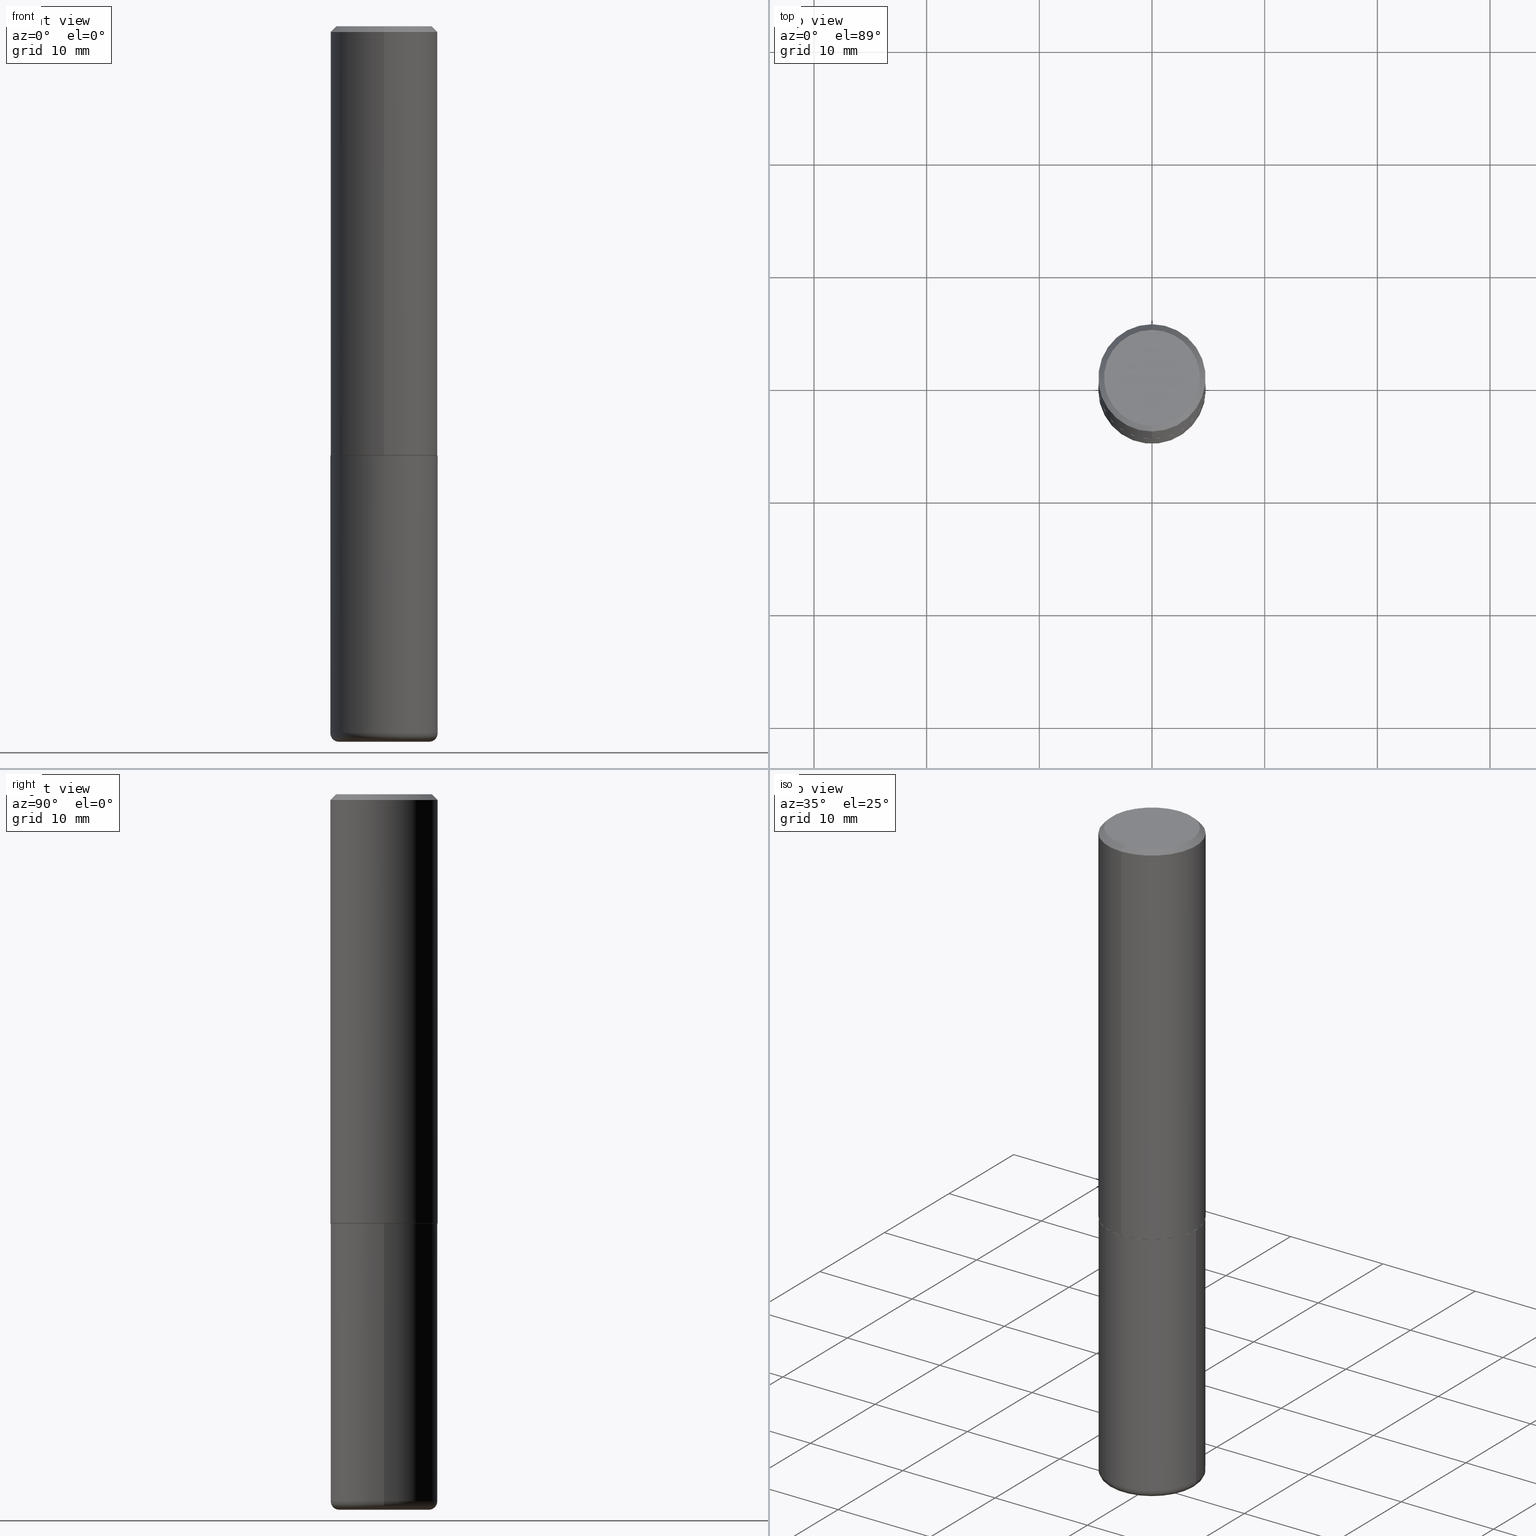
[diagram: canonical four-view strip — front | top / right | iso, engineering-drawing reading convention]
A machine part, canonical four-view strip (front | top / right | iso — engineering-drawing reading convention). The complete STEP part file that produces these views, byte-faithful:
ISO-10303-21;
HEADER;
FILE_DESCRIPTION (( 'STEP AP203' ),
    '1' );
FILE_NAME ('38250.STEP',
    '2024-03-02T19:38:32',
    ( '' ),
    ( '' ),
    'SwSTEP 2.0',
    'SolidWorks 2023',
    '' );
FILE_SCHEMA (( 'CONFIG_CONTROL_DESIGN' ));
ENDSEC;

DATA;
#1 = EDGE_LOOP ( 'NONE', ( #349, #96 ) ) ;
#2 = EDGE_CURVE ( 'NONE', #31, #197, #258, .T. ) ;
#3 = ORIENTED_EDGE ( 'NONE', *, *, #144, .F. ) ;
#4 = CARTESIAN_POINT ( 'NONE',  ( 3.666321494475970828E-29, -5.232923199104616895E-15, -1.499000000000000110 ) ) ;
#5 = CIRCLE ( 'NONE', #249, 0.1864999999999999714 ) ;
#6 = CIRCLE ( 'NONE', #402, 0.03000000000000025910 ) ;
#7 = AXIS2_PLACEMENT_3D ( 'NONE', #10, #13, #153 ) ;
#8 = DIRECTION ( 'NONE',  ( 1.000000000000000000, -6.982962677686267499E-15, 0.000000000000000000 ) ) ;
#9 = CARTESIAN_POINT ( 'NONE',  ( 3.668767339368883594E-29, -5.236414141865861409E-15, -1.500000000000000444 ) ) ;
#10 = CARTESIAN_POINT ( 'NONE',  ( 3.668203209277704895E-29, -5.237222008264718177E-15, -1.500000000000000222 ) ) ;
#11 = CARTESIAN_POINT ( 'NONE',  ( 6.113672015462842613E-29, -8.728703347107866520E-15, -2.500000000000000444 ) ) ;
#12 = CARTESIAN_POINT ( 'NONE',  ( 3.668767339368883594E-29, -5.236414141865861409E-15, -1.500000000000000444 ) ) ;
#13 = DIRECTION ( 'NONE',  ( 2.438088387897960049E-29, -3.491481338843145188E-15, -1.000000000000000000 ) ) ;
#14 = PERSON_AND_ORGANIZATION ( #245, #317 ) ;
#15 = PERSON_AND_ORGANIZATION ( #245, #317 ) ;
#16 = UNCERTAINTY_MEASURE_WITH_UNIT (LENGTH_MEASURE( 1.000000000000000082E-05 ), #370, 'distance_accuracy_value', 'NONE');
#17 = CARTESIAN_POINT ( 'NONE',  ( -1.302322539388451720E-15, -0.1865000000000051894, -1.499999999999999778 ) ) ;
#18 = CIRCLE ( 'NONE', #418, 0.1575000000000000289 ) ;
#19 = DIRECTION ( 'NONE',  ( 1.000000000000000000, -6.982962677686267499E-15, 4.883557194083113462E-29 ) ) ;
#20 = CONICAL_SURFACE ( 'NONE', #97, 0.1874999999999999722, 0.7853981633974469467 ) ;
#21 = DIRECTION ( 'NONE',  ( -4.937700262164211199E-15, -0.7071067811864968355, 0.7071067811865981989 ) ) ;
#22 = PERSON_AND_ORGANIZATION_ROLE ( 'design_owner' ) ;
#23 = DIRECTION ( 'NONE',  ( 1.000000000000000000, -6.982962677686267499E-15, 0.000000000000000000 ) ) ;
#24 = APPROVAL_STATUS ( 'not_yet_approved' ) ;
#25 = CC_DESIGN_PERSON_AND_ORGANIZATION_ASSIGNMENT ( #14, #53, ( #360 ) ) ;
#26 = VERTEX_POINT ( 'NONE', #117 ) ;
#27 = AXIS2_PLACEMENT_3D ( 'NONE', #30, #206, #151 ) ;
#28 = DIRECTION ( 'NONE',  ( -2.445844892912588876E-29, 3.490942761243906817E-15, 1.000000000000000000 ) ) ;
#29 = VERTEX_POINT ( 'NONE', #235 ) ;
#30 = CARTESIAN_POINT ( 'NONE',  ( 3.666321494475970828E-29, -5.232923199104616895E-15, -1.499000000000000110 ) ) ;
#31 = VERTEX_POINT ( 'NONE', #353 ) ;
#32 = ORIENTED_EDGE ( 'NONE', *, *, #84, .F. ) ;
#33 = DIRECTION ( 'NONE',  ( 7.105427357601001859E-15, 1.000000000000000000, -3.491481338843145583E-15 ) ) ;
#34 = DIRECTION ( 'NONE',  ( -6.982962677686266711E-15, -1.000000000000000000, 3.490942761243906423E-15 ) ) ;
#35 = VECTOR ( 'NONE', #391, 39.37007874015748143 ) ;
#36 = LOCAL_TIME ( 14, 38, 32.00000000000000000, #187 ) ;
#37 = CIRCLE ( 'NONE', #135, 0.1575000000000000289 ) ;
#38 =( LENGTH_UNIT ( ) NAMED_UNIT ( * ) SI_UNIT ( $, .METRE. ) );
#39 = EDGE_CURVE ( 'NONE', #129, #227, #412, .T. ) ;
#40 = CARTESIAN_POINT ( 'NONE',  ( 0.1875000000000001943, -9.933264409008746581E-15, -2.470000000000000195 ) ) ;
#41 = CARTESIAN_POINT ( 'NONE',  ( 3.668767339368883594E-29, -5.236414141865861409E-15, -1.500000000000000444 ) ) ;
#42 = LENGTH_MEASURE_WITH_UNIT ( LENGTH_MEASURE( 0.02539999999999999897 ), #38 );
#43 = DIRECTION ( 'NONE',  ( -6.982962677686265922E-15, -1.000000000000000000, 2.929595703661408850E-15 ) ) ;
#44 = LOCAL_TIME ( 14, 38, 32.00000000000000000, #126 ) ;
#45 = DATE_TIME_ROLE ( 'creation_date' ) ;
#46 = EDGE_CURVE ( 'NONE', #95, #69, #330, .T. ) ;
#47 = APPROVAL_ROLE ( '' ) ;
#48 = ADVANCED_FACE ( 'NONE', ( #175 ), #238, .F. ) ;
#49 = FACE_OUTER_BOUND ( 'NONE', #357, .T. ) ;
#50 = DIRECTION ( 'NONE',  ( 0.000000000000000000, 0.000000000000000000, 1.000000000000000000 ) ) ;
#51 = CARTESIAN_POINT ( 'NONE',  ( 6.040307951277287977E-29, -8.623958906942569995E-15, -2.470000000000000195 ) ) ;
#52 = DIRECTION ( 'NONE',  ( -2.445844892912589156E-29, 3.490942761243906423E-15, 1.000000000000000000 ) ) ;
#53 = PERSON_AND_ORGANIZATION_ROLE ( 'design_supplier' ) ;
#54 = AXIS2_PLACEMENT_3D ( 'NONE', #41, #246, #413 ) ;
#55 = LINE ( 'NONE', #199, #156 ) ;
#56 = EDGE_CURVE ( 'NONE', #142, #95, #185, .T. ) ;
#57 = PERSON_AND_ORGANIZATION ( #245, #317 ) ;
#58 = ORIENTED_EDGE ( 'NONE', *, *, #84, .T. ) ;
#59 = MANIFOLD_SOLID_BREP ( 'Body-Move/Copy2[1]', #371 ) ;
#60 = CC_DESIGN_DATE_AND_TIME_ASSIGNMENT ( #214, #45, ( #277 ) ) ;
#61 = ORIENTED_EDGE ( 'NONE', *, *, #2, .F. ) ;
#62 = EDGE_CURVE ( 'NONE', #70, #31, #404, .T. ) ;
#63 = CARTESIAN_POINT ( 'NONE',  ( 7.330148026253442751E-46, -1.046228534983812136E-31, -2.996979917857535013E-17 ) ) ;
#64 = AXIS2_PLACEMENT_3D ( 'NONE', #81, #77, #149 ) ;
#65 = CC_DESIGN_APPROVAL ( #72, ( #360 ) ) ;
#66 = ORIENTED_EDGE ( 'NONE', *, *, #116, .F. ) ;
#67 = EDGE_CURVE ( 'NONE', #165, #300, #6, .T. ) ;
#68 = AXIS2_PLACEMENT_3D ( 'NONE', #181, #177, #394 ) ;
#69 = VERTEX_POINT ( 'NONE', #338 ) ;
#70 = VERTEX_POINT ( 'NONE', #17 ) ;
#71 = AXIS2_PLACEMENT_3D ( 'NONE', #4, #104, #366 ) ;
#72 = APPROVAL ( #90, 'UNSPECIFIED' ) ;
#73 = DIRECTION ( 'NONE',  ( -2.445844892912588876E-29, 3.490942761243906817E-15, 1.000000000000000000 ) ) ;
#74 = DIRECTION ( 'NONE',  ( -2.445468806185136597E-29, 3.491481338843145583E-15, 1.000000000000000000 ) ) ;
#75 = FACE_OUTER_BOUND ( 'NONE', #314, .T. ) ;
#76 = FACE_OUTER_BOUND ( 'NONE', #380, .T. ) ;
#77 = DIRECTION ( 'NONE',  ( 2.438088387897960049E-29, -3.491481338843145188E-15, -1.000000000000000000 ) ) ;
#78 = EDGE_CURVE ( 'NONE', #95, #142, #99, .T. ) ;
#79 = AXIS2_PLACEMENT_3D ( 'NONE', #304, #368, #210 ) ;
#80 = APPROVAL_PERSON_ORGANIZATION ( #15, #72, #47 ) ;
#81 = CARTESIAN_POINT ( 'NONE',  ( 5.767437074231431519E-31, -1.740123666032775133E-14, -2.500000000000000000 ) ) ;
#82 = CYLINDRICAL_SURFACE ( 'NONE', #264, 0.1875000000000000555 ) ;
#83 = FACE_OUTER_BOUND ( 'NONE', #237, .T. ) ;
#84 = EDGE_CURVE ( 'NONE', #197, #69, #226, .T. ) ;
#85 = DIRECTION ( 'NONE',  ( 2.445844892912588876E-29, -3.490942761243906423E-15, -1.000000000000000000 ) ) ;
#86 = EDGE_CURVE ( 'NONE', #232, #197, #55, .T. ) ;
#87 = CALENDAR_DATE ( 2024, 2, 3 ) ;
#88 = LINE ( 'NONE', #269, #361 ) ;
#89 = CIRCLE ( 'NONE', #192, 0.1874999999999999722 ) ;
#90 = APPROVAL_STATUS ( 'not_yet_approved' ) ;
#91 = DESIGN_CONTEXT ( 'detailed design', #363, 'design' ) ;
#92 = DATE_TIME_ROLE ( 'classification_date' ) ;
#93 = DIRECTION ( 'NONE',  ( -2.445468806185136597E-29, 3.491481338843145583E-15, 1.000000000000000000 ) ) ;
#94 = CARTESIAN_POINT ( 'NONE',  ( 3.668203209277704895E-29, -5.237222008264718177E-15, -1.500000000000000222 ) ) ;
#95 = VERTEX_POINT ( 'NONE', #311 ) ;
#96 = ORIENTED_EDGE ( 'NONE', *, *, #346, .T. ) ;
#97 = AXIS2_PLACEMENT_3D ( 'NONE', #221, #341, #194 ) ;
#98 = ORIENTED_EDGE ( 'NONE', *, *, #144, .T. ) ;
#99 = CIRCLE ( 'NONE', #207, 0.1675000000000000100 ) ;
#100 = AXIS2_PLACEMENT_3D ( 'NONE', #150, #85, #212 ) ;
#101 = ORIENTED_EDGE ( 'NONE', *, *, #67, .F. ) ;
#102 = ORIENTED_EDGE ( 'NONE', *, *, #108, .F. ) ;
#103 = EDGE_CURVE ( 'NONE', #69, #136, #89, .T. ) ;
#104 = DIRECTION ( 'NONE',  ( -2.445844892912588876E-29, 3.490942761243906817E-15, 1.000000000000000000 ) ) ;
#105 = APPROVAL ( #337, 'UNSPECIFIED' ) ;
#106 = DIRECTION ( 'NONE',  ( 4.937700262164540942E-15, 0.7071067811865441310, -0.7071067811865509034 ) ) ;
#107 = DIRECTION ( 'NONE',  ( -2.445468806185136877E-29, 3.491481338843145188E-15, 1.000000000000000000 ) ) ;
#108 = EDGE_CURVE ( 'NONE', #136, #69, #299, .T. ) ;
#109 = DIMENSIONAL_EXPONENTS ( 1.000000000000000000, 0.000000000000000000, 0.000000000000000000, 0.000000000000000000, 0.000000000000000000, 0.000000000000000000, 0.000000000000000000 ) ;
#110 = DIRECTION ( 'NONE',  ( -2.445468806185136597E-29, 3.491481338843145583E-15, 1.000000000000000000 ) ) ;
#111 = DIRECTION ( 'NONE',  ( -2.445468806185136877E-29, 3.491481338843145188E-15, 1.000000000000000000 ) ) ;
#112 = CARTESIAN_POINT ( 'NONE',  ( 0.000000000000000000, 0.000000000000000000, 0.000000000000000000 ) ) ;
#113 = LOCAL_TIME ( 14, 38, 32.00000000000000000, #307 ) ;
#114 = CARTESIAN_POINT ( 'NONE',  ( 3.668767339368883594E-29, -5.236414141865861409E-15, -1.500000000000000444 ) ) ;
#115 = DIRECTION ( 'NONE',  ( -2.445468806185136597E-29, 3.491481338843145583E-15, 1.000000000000000000 ) ) ;
#116 = EDGE_CURVE ( 'NONE', #129, #165, #18, .T. ) ;
#117 = CARTESIAN_POINT ( 'NONE',  ( -0.1875000000000000278, -5.598322828053456632E-15, -1.500000000000000222 ) ) ;
#118 = FACE_OUTER_BOUND ( 'NONE', #397, .T. ) ;
#119 = FACE_OUTER_BOUND ( 'NONE', #294, .T. ) ;
#120 = CARTESIAN_POINT ( 'NONE',  ( 0.000000000000000000, 0.000000000000000000, 0.000000000000000000 ) ) ;
#121 = PERSON_AND_ORGANIZATION ( #245, #317 ) ;
#122 = DIRECTION ( 'NONE',  ( 1.000000000000000000, -6.982962677686266711E-15, 0.000000000000000000 ) ) ;
#123 = CARTESIAN_POINT ( 'NONE',  ( 4.891689785825187560E-31, -6.981885522487828820E-17, -0.02000000000000004205 ) ) ;
#124 = AXIS2_PLACEMENT_3D ( 'NONE', #123, #256, #252 ) ;
#125 = DATE_AND_TIME ( #279, #113 ) ;
#126 = COORDINATED_UNIVERSAL_TIME_OFFSET ( 5, 0, .BEHIND. ) ;
#127 = DIRECTION ( 'NONE',  ( 1.000000000000000000, -6.982962677686273021E-15, 0.000000000000000000 ) ) ;
#128 = VECTOR ( 'NONE', #106, 39.37007874015748143 ) ;
#129 = VERTEX_POINT ( 'NONE', #374 ) ;
#130 = DIRECTION ( 'NONE',  ( 1.000000000000000000, -6.982962677686266711E-15, 0.000000000000000000 ) ) ;
#131 = ORIENTED_EDGE ( 'NONE', *, *, #346, .F. ) ;
#132 = ORIENTED_EDGE ( 'NONE', *, *, #62, .T. ) ;
#133 = CIRCLE ( 'NONE', #281, 0.1875000000000000555 ) ;
#134 = ORIENTED_EDGE ( 'NONE', *, *, #86, .F. ) ;
#135 = AXIS2_PLACEMENT_3D ( 'NONE', #11, #268, #8 ) ;
#136 = VERTEX_POINT ( 'NONE', #336 ) ;
#137 = ADVANCED_FACE ( 'NONE', ( #49 ), #20, .T. ) ;
#138 = APPROVAL ( #24, 'UNSPECIFIED' ) ;
#139 = DIRECTION ( 'NONE',  ( -1.000000000000000000, 7.105427357600994759E-15, 0.000000000000000000 ) ) ;
#140 = DIRECTION ( 'NONE',  ( -6.982962677686265922E-15, -1.000000000000000000, 2.929595703661408850E-15 ) ) ;
#141 = CARTESIAN_POINT ( 'NONE',  ( -0.1875000000000001943, -7.291691277392382147E-15, -2.470000000000000195 ) ) ;
#142 = VERTEX_POINT ( 'NONE', #163 ) ;
#143 = VECTOR ( 'NONE', #52, 39.37007874015748143 ) ;
#144 = EDGE_CURVE ( 'NONE', #197, #31, #381, .T. ) ;
#145 = DIRECTION ( 'NONE',  ( 2.445844892912588876E-29, -3.490942761243906817E-15, -1.000000000000000000 ) ) ;
#146 = DIRECTION ( 'NONE',  ( -6.982962677686265922E-15, -1.000000000000000000, 2.929595703661408850E-15 ) ) ;
#147 = DIRECTION ( 'NONE',  ( 6.982962677686266711E-15, 1.000000000000000000, -3.483106191921935949E-15 ) ) ;
#148 = FACE_OUTER_BOUND ( 'NONE', #416, .T. ) ;
#149 = DIRECTION ( 'NONE',  ( -1.000000000000000000, 6.982962677686265922E-15, -4.876176775795935793E-29 ) ) ;
#150 = CARTESIAN_POINT ( 'NONE',  ( 1.169646248512449595E-15, 0.1675000000000000100, -5.997178120976420969E-16 ) ) ;
#151 = DIRECTION ( 'NONE',  ( -6.982962677686265922E-15, -1.000000000000000000, 2.913971193241877611E-15 ) ) ;
#152 = ADVANCED_FACE ( 'NONE', ( #303 ), #170, .T. ) ;
#153 = DIRECTION ( 'NONE',  ( -1.000000000000000000, 6.982962677686265922E-15, -4.876176775795935793E-29 ) ) ;
#154 = DATE_AND_TIME ( #285, #369 ) ;
#155 = PERSON_AND_ORGANIZATION ( #245, #317 ) ;
#156 = VECTOR ( 'NONE', #376, 39.37007874015748143 ) ;
#157 = DIRECTION ( 'NONE',  ( -2.445844892912588876E-29, 3.490942761243906817E-15, 1.000000000000000000 ) ) ;
#158 = ADVANCED_FACE ( 'NONE', ( #241 ), #208, .F. ) ;
#159 = CIRCLE ( 'NONE', #265, 0.1875000000000000278 ) ;
#160 = PERSON_AND_ORGANIZATION ( #245, #317 ) ;
#161 = DIRECTION ( 'NONE',  ( -6.982962677686266711E-15, -1.000000000000000000, 3.491481338843145583E-15 ) ) ;
#162 = ADVANCED_FACE ( 'NONE', ( #205 ), #273, .T. ) ;
#163 = CARTESIAN_POINT ( 'NONE',  ( -1.217738394604446442E-15, -0.1675000000000000100, 5.547631133297791179E-16 ) ) ;
#164 = APPROVAL_ROLE ( '' ) ;
#165 = VERTEX_POINT ( 'NONE', #327 ) ;
#166 = EDGE_CURVE ( 'NONE', #227, #300, #198, .T. ) ;
#167 = CARTESIAN_POINT ( 'NONE',  ( 6.113672015462842613E-29, -8.728703347107866520E-15, -2.500000000000000444 ) ) ;
#168 = TOROIDAL_SURFACE ( 'NONE', #79, 0.1575000000000000289, 0.03000000000000025910 ) ;
#169 = ORIENTED_EDGE ( 'NONE', *, *, #56, .T. ) ;
#170 = CYLINDRICAL_SURFACE ( 'NONE', #372, 0.1875000000000000555 ) ;
#171 = ORIENTED_EDGE ( 'NONE', *, *, #191, .F. ) ;
#172 = ORIENTED_EDGE ( 'NONE', *, *, #46, .F. ) ;
#173 = SHAPE_DEFINITION_REPRESENTATION ( #225, #261 ) ;
#174 = ORIENTED_EDGE ( 'NONE', *, *, #384, .F. ) ;
#175 = FACE_OUTER_BOUND ( 'NONE', #259, .T. ) ;
#176 = VECTOR ( 'NONE', #111, 39.37007874015748143 ) ;
#177 = DIRECTION ( 'NONE',  ( -2.445468806185136597E-29, 3.491481338843145583E-15, 1.000000000000000000 ) ) ;
#178 = AXIS2_PLACEMENT_3D ( 'NONE', #186, #33, #139 ) ;
#179 = CIRCLE ( 'NONE', #242, 0.1875000000000000278 ) ;
#180 = CALENDAR_DATE ( 2024, 2, 3 ) ;
#181 = CARTESIAN_POINT ( 'NONE',  ( 6.040307951277287977E-29, -8.623958906942569995E-15, -2.470000000000000195 ) ) ;
#182 = PLANE ( 'NONE',  #100 ) ;
#183 = FACE_OUTER_BOUND ( 'NONE', #196, .T. ) ;
#184 = APPROVAL_PERSON_ORGANIZATION ( #217, #105, #308 ) ;
#185 = CIRCLE ( 'NONE', #292, 0.1675000000000000100 ) ;
#186 = CARTESIAN_POINT ( 'NONE',  ( -0.1575000000000000289, -7.504854098120412392E-15, -2.470000000000000195 ) ) ;
#187 = COORDINATED_UNIVERSAL_TIME_OFFSET ( 5, 0, .BEHIND. ) ;
#188 = ORIENTED_EDGE ( 'NONE', *, *, #396, .T. ) ;
#189 = ADVANCED_FACE ( 'NONE', ( #148 ), #82, .T. ) ;
#190 = PERSON_AND_ORGANIZATION_ROLE ( 'classification_officer' ) ;
#191 = EDGE_CURVE ( 'NONE', #142, #136, #88, .T. ) ;
#192 = AXIS2_PLACEMENT_3D ( 'NONE', #345, #28, #406 ) ;
#193 = COORDINATED_UNIVERSAL_TIME_OFFSET ( 5, 0, .BEHIND. ) ;
#194 = DIRECTION ( 'NONE',  ( 6.982962677686266711E-15, 1.000000000000000000, -3.483106191921935949E-15 ) ) ;
#195 = APPLICATION_PROTOCOL_DEFINITION ( 'international standard', 'config_control_design', 1994, #363 ) ;
#196 = EDGE_LOOP ( 'NONE', ( #343, #293, #61, #389 ) ) ;
#197 = VERTEX_POINT ( 'NONE', #296 ) ;
#198 = CIRCLE ( 'NONE', #68, 0.1875000000000000555 ) ;
#199 = CARTESIAN_POINT ( 'NONE',  ( 1.325162202192623128E-15, 0.1864999999999947533, -1.500000000000000888 ) ) ;
#200 = CLOSED_SHELL ( 'NONE', ( #234, #162, #137, #364, #356, #375, #48, #315 ) ) ;
#201 = ORIENTED_EDGE ( 'NONE', *, *, #56, .F. ) ;
#202 = ORIENTED_EDGE ( 'NONE', *, *, #257, .F. ) ;
#203 = ORIENTED_EDGE ( 'NONE', *, *, #213, .F. ) ;
#204 = MANIFOLD_SOLID_BREP ( 'Body-Move/Copy2[2]', #200 ) ;
#205 = FACE_OUTER_BOUND ( 'NONE', #417, .T. ) ;
#206 = DIRECTION ( 'NONE',  ( -2.445844892912588876E-29, 3.490942761243906817E-15, 1.000000000000000000 ) ) ;
#207 = AXIS2_PLACEMENT_3D ( 'NONE', #282, #278, #223 ) ;
#208 = PLANE ( 'NONE',  #7 ) ;
#209 = AXIS2_PLACEMENT_3D ( 'NONE', #355, #73, #323 ) ;
#210 = DIRECTION ( 'NONE',  ( 1.000000000000000000, -6.982962677686267499E-15, 4.883557194083113462E-29 ) ) ;
#211 = ORIENTED_EDGE ( 'NONE', *, *, #321, .F. ) ;
#212 = DIRECTION ( 'NONE',  ( 6.982962677686265922E-15, 1.000000000000000000, -3.490942761243906423E-15 ) ) ;
#213 = EDGE_CURVE ( 'NONE', #70, #232, #5, .T. ) ;
#214 = DATE_AND_TIME ( #87, #385 ) ;
#215 = DATE_AND_TIME ( #305, #36 ) ;
#216 = DIRECTION ( 'NONE',  ( -2.445468806185136597E-29, 3.491481338843145583E-15, 1.000000000000000000 ) ) ;
#217 = PERSON_AND_ORGANIZATION ( #245, #317 ) ;
#218 = CARTESIAN_POINT ( 'NONE',  ( -1.302322539388451720E-15, -0.1865000000000051894, -1.499999999999999778 ) ) ;
#219 =( NAMED_UNIT ( * ) PLANE_ANGLE_UNIT ( ) SI_UNIT ( $, .RADIAN. ) );
#220 = FACE_OUTER_BOUND ( 'NONE', #289, .T. ) ;
#221 = CARTESIAN_POINT ( 'NONE',  ( 4.891689785825187560E-31, -6.981885522487828820E-17, -0.02000000000000004205 ) ) ;
#222 = ORIENTED_EDGE ( 'NONE', *, *, #384, .T. ) ;
#223 = DIRECTION ( 'NONE',  ( -6.982962677686265922E-15, -1.000000000000000000, 3.490942761243906817E-15 ) ) ;
#224 = ORIENTED_EDGE ( 'NONE', *, *, #103, .F. ) ;
#225 = PRODUCT_DEFINITION_SHAPE ( 'NONE', 'NONE',  #277 ) ;
#226 = LINE ( 'NONE', #401, #143 ) ;
#227 = VERTEX_POINT ( 'NONE', #141 ) ;
#228 = CONICAL_SURFACE ( 'NONE', #230, 0.1864999999999999714, 0.7853981633973801113 ) ;
#229 = APPROVAL_PERSON_ORGANIZATION ( #160, #138, #164 ) ;
#230 = AXIS2_PLACEMENT_3D ( 'NONE', #114, #239, #140 ) ;
#231 = ORIENTED_EDGE ( 'NONE', *, *, #103, .T. ) ;
#232 = VERTEX_POINT ( 'NONE', #240 ) ;
#233 = CC_DESIGN_PERSON_AND_ORGANIZATION_ASSIGNMENT ( #57, #22, ( #348 ) ) ;
#234 = ADVANCED_FACE ( 'NONE', ( #183 ), #326, .T. ) ;
#235 = CARTESIAN_POINT ( 'NONE',  ( 0.1875000000000000278, -6.546527510330893974E-15, -1.500000000000000222 ) ) ;
#236 = DATE_AND_TIME ( #180, #44 ) ;
#237 = EDGE_LOOP ( 'NONE', ( #171, #320, #288, #231 ) ) ;
#238 = PLANE ( 'NONE',  #54 ) ;
#239 = DIRECTION ( 'NONE',  ( -2.445844892912588876E-29, 3.490942761243906817E-15, 1.000000000000000000 ) ) ;
#240 = CARTESIAN_POINT ( 'NONE',  ( 1.328714915871423829E-15, 0.1864999999999947533, -1.500000000000000888 ) ) ;
#241 = FACE_OUTER_BOUND ( 'NONE', #1, .T. ) ;
#242 = AXIS2_PLACEMENT_3D ( 'NONE', #332, #254, #122 ) ;
#243 = LINE ( 'NONE', #329, #359 ) ;
#244 = LINE ( 'NONE', #325, #35 ) ;
#245 = PERSON ( 'UNSPECIFIED', 'UNSPECIFIED', 'UNSPECIFIED', ('UNSPECIFIED'), ('UNSPECIFIED'), ('UNSPECIFIED') ) ;
#246 = DIRECTION ( 'NONE',  ( -2.445844892912588876E-29, 3.490942761243906423E-15, 1.000000000000000000 ) ) ;
#247 = DIRECTION ( 'NONE',  ( -2.445844892912588876E-29, 3.490942761243906817E-15, 1.000000000000000000 ) ) ;
#248 = ADVANCED_FACE ( 'NONE', ( #119 ), #168, .T. ) ;
#249 = AXIS2_PLACEMENT_3D ( 'NONE', #9, #365, #43 ) ;
#250 = SECURITY_CLASSIFICATION ( '', '', #400 ) ;
#251 = AXIS2_PLACEMENT_3D ( 'NONE', #358, #247, #34 ) ;
#252 = DIRECTION ( 'NONE',  ( -6.982962677686266711E-15, -1.000000000000000000, 3.483106191921935949E-15 ) ) ;
#253 = DIRECTION ( 'NONE',  ( 1.000000000000000000, 0.000000000000000000, 0.000000000000000000 ) ) ;
#254 = DIRECTION ( 'NONE',  ( -2.445468806185136597E-29, 3.491481338843145583E-15, 1.000000000000000000 ) ) ;
#255 = PERSON_AND_ORGANIZATION_ROLE ( 'creator' ) ;
#256 = DIRECTION ( 'NONE',  ( -2.445844892912588876E-29, 3.490942761243906817E-15, 1.000000000000000000 ) ) ;
#257 = EDGE_CURVE ( 'NONE', #232, #70, #309, .T. ) ;
#258 = CIRCLE ( 'NONE', #71, 0.1875000000000001943 ) ;
#259 = EDGE_LOOP ( 'NONE', ( #203, #202 ) ) ;
#260 = ORIENTED_EDGE ( 'NONE', *, *, #373, .F. ) ;
#261 = ADVANCED_BREP_SHAPE_REPRESENTATION ( '38250', ( #59, #204, #387 ), #334 ) ;
#262 = APPROVAL_DATE_TIME ( #236, #105 ) ;
#263 = ORIENTED_EDGE ( 'NONE', *, *, #2, .T. ) ;
#264 = AXIS2_PLACEMENT_3D ( 'NONE', #112, #115, #362 ) ;
#265 = AXIS2_PLACEMENT_3D ( 'NONE', #94, #344, #130 ) ;
#266 = ORIENTED_EDGE ( 'NONE', *, *, #67, .T. ) ;
#267 = ORIENTED_EDGE ( 'NONE', *, *, #286, .F. ) ;
#268 = DIRECTION ( 'NONE',  ( -2.445468806185136597E-29, 3.491481338843145583E-15, 1.000000000000000000 ) ) ;
#269 = CARTESIAN_POINT ( 'NONE',  ( -1.286343374582161379E-15, -0.1875000000000000555, -0.01999999999999938979 ) ) ;
#270 = PLANE ( 'NONE',  #64 ) ;
#271 = DIRECTION ( 'NONE',  ( 1.000000000000000000, -6.982962677686265922E-15, 4.876176775795935793E-29 ) ) ;
#272 = EDGE_CURVE ( 'NONE', #300, #227, #133, .T. ) ;
#273 = CYLINDRICAL_SURFACE ( 'NONE', #251, 0.1875000000000000833 ) ;
#274 = DIRECTION ( 'NONE',  ( -2.445844892912588876E-29, 3.490942761243906817E-15, 1.000000000000000000 ) ) ;
#275 = CARTESIAN_POINT ( 'NONE',  ( 3.668767339368883594E-29, -5.236414141865861409E-15, -1.500000000000000444 ) ) ;
#276 = COORDINATED_UNIVERSAL_TIME_OFFSET ( 5, 0, .BEHIND. ) ;
#277 = PRODUCT_DEFINITION ( 'UNKNOWN', '', #360, #91 ) ;
#278 = DIRECTION ( 'NONE',  ( -2.445844892912588876E-29, 3.490942761243906817E-15, 1.000000000000000000 ) ) ;
#279 = CALENDAR_DATE ( 2024, 2, 3 ) ;
#280 = CC_DESIGN_APPROVAL ( #105, ( #250 ) ) ;
#281 = AXIS2_PLACEMENT_3D ( 'NONE', #333, #110, #388 ) ;
#282 = CARTESIAN_POINT ( 'NONE',  ( 7.330148026253442751E-46, -1.046228534983812136E-31, -2.996979917857535013E-17 ) ) ;
#283 = MECHANICAL_CONTEXT ( 'NONE', #393, 'mechanical' ) ;
#284 = DIRECTION ( 'NONE',  ( -6.982962677686265922E-15, -1.000000000000000000, 3.490942761243906817E-15 ) ) ;
#285 = CALENDAR_DATE ( 2024, 2, 3 ) ;
#286 = EDGE_CURVE ( 'NONE', #227, #26, #243, .T. ) ;
#287 = AXIS2_PLACEMENT_3D ( 'NONE', #298, #145, #147 ) ;
#288 = ORIENTED_EDGE ( 'NONE', *, *, #46, .T. ) ;
#289 = EDGE_LOOP ( 'NONE', ( #414, #318, #266, #352 ) ) ;
#290 = ORIENTED_EDGE ( 'NONE', *, *, #257, .T. ) ;
#291 = TOROIDAL_SURFACE ( 'NONE', #403, 0.1575000000000000289, 0.03000000000000025910 ) ;
#292 = AXIS2_PLACEMENT_3D ( 'NONE', #63, #157, #284 ) ;
#293 = ORIENTED_EDGE ( 'NONE', *, *, #86, .T. ) ;
#294 = EDGE_LOOP ( 'NONE', ( #222, #306, #409, #101 ) ) ;
#295 = CARTESIAN_POINT ( 'NONE',  ( 0.1875000000000000555, -1.309305502066175205E-15, 9.142831454617382414E-30 ) ) ;
#296 = CARTESIAN_POINT ( 'NONE',  ( 1.332267629550206781E-15, 0.1874999999999949485, -1.499000000000000554 ) ) ;
#297 = EDGE_LOOP ( 'NONE', ( #319, #322, #211, #260 ) ) ;
#298 = CARTESIAN_POINT ( 'NONE',  ( 4.891689785825187560E-31, -6.981885522487828820E-17, -0.02000000000000004205 ) ) ;
#299 = CIRCLE ( 'NONE', #124, 0.1874999999999999722 ) ;
#300 = VERTEX_POINT ( 'NONE', #40 ) ;
#301 = LINE ( 'NONE', #295, #176 ) ;
#302 = DIRECTION ( 'NONE',  ( -4.851104656540957175E-15, -0.7071067811865490160, -0.7071067811865460184 ) ) ;
#303 = FACE_OUTER_BOUND ( 'NONE', #297, .T. ) ;
#304 = CARTESIAN_POINT ( 'NONE',  ( 6.040307951277287977E-29, -8.623958906942569995E-15, -2.470000000000000195 ) ) ;
#305 = CALENDAR_DATE ( 2024, 2, 3 ) ;
#306 = ORIENTED_EDGE ( 'NONE', *, *, #39, .T. ) ;
#307 = COORDINATED_UNIVERSAL_TIME_OFFSET ( 5, 0, .BEHIND. ) ;
#308 = APPROVAL_ROLE ( '' ) ;
#309 = CIRCLE ( 'NONE', #350, 0.1864999999999999714 ) ;
#310 = CONICAL_SURFACE ( 'NONE', #287, 0.1874999999999999722, 0.7853981633974469467 ) ;
#311 = CARTESIAN_POINT ( 'NONE',  ( 1.239475875289312499E-15, 0.1675000000000000100, -6.147027116869298551E-16 ) ) ;
#312 = CARTESIAN_POINT ( 'NONE',  ( 0.000000000000000000, 0.000000000000000000, 0.000000000000000000 ) ) ;
#313 = ORIENTED_EDGE ( 'NONE', *, *, #166, .T. ) ;
#314 = EDGE_LOOP ( 'NONE', ( #174, #66 ) ) ;
#315 = ADVANCED_FACE ( 'NONE', ( #76 ), #182, .F. ) ;
#316 = CARTESIAN_POINT ( 'NONE',  ( 0.1575000000000000289, -9.723775528678158264E-15, -2.470000000000000195 ) ) ;
#317 = ORGANIZATION ( 'UNSPECIFIED', 'UNSPECIFIED', '' ) ;
#318 = ORIENTED_EDGE ( 'NONE', *, *, #116, .T. ) ;
#319 = ORIENTED_EDGE ( 'NONE', *, *, #272, .T. ) ;
#320 = ORIENTED_EDGE ( 'NONE', *, *, #78, .F. ) ;
#321 = EDGE_CURVE ( 'NONE', #29, #26, #179, .T. ) ;
#322 = ORIENTED_EDGE ( 'NONE', *, *, #286, .T. ) ;
#323 = DIRECTION ( 'NONE',  ( -6.982962677686266711E-15, -1.000000000000000000, 3.490942761243906423E-15 ) ) ;
#324 = ORIENTED_EDGE ( 'NONE', *, *, #373, .T. ) ;
#325 = CARTESIAN_POINT ( 'NONE',  ( -1.309305502066175600E-15, -0.1875000000000000833, 6.545517677332327747E-16 ) ) ;
#326 = CONICAL_SURFACE ( 'NONE', #382, 0.1864999999999999714, 0.7853981633973801113 ) ;
#327 = CARTESIAN_POINT ( 'NONE',  ( 0.1575000000000000289, -9.828519968843453212E-15, -2.500000000000000444 ) ) ;
#328 = ADVANCED_FACE ( 'NONE', ( #220 ), #291, .T. ) ;
#329 = CARTESIAN_POINT ( 'NONE',  ( -0.1875000000000000555, 1.332267629550188243E-15, -9.223003294227950793E-30 ) ) ;
#330 = LINE ( 'NONE', #354, #128 ) ;
#331 = FACE_OUTER_BOUND ( 'NONE', #377, .T. ) ;
#332 = CARTESIAN_POINT ( 'NONE',  ( 3.668203209277704895E-29, -5.237222008264718177E-15, -1.500000000000000222 ) ) ;
#333 = CARTESIAN_POINT ( 'NONE',  ( 6.040307951277287977E-29, -8.623958906942569995E-15, -2.470000000000000195 ) ) ;
#334 =( GEOMETRIC_REPRESENTATION_CONTEXT ( 3 ) GLOBAL_UNCERTAINTY_ASSIGNED_CONTEXT ( ( #16 ) ) GLOBAL_UNIT_ASSIGNED_CONTEXT ( ( #370, #219, #335 ) ) REPRESENTATION_CONTEXT ( 'NONE', 'WORKASPACE' ) );
#335 =( NAMED_UNIT ( * ) SI_UNIT ( $, .STERADIAN. ) SOLID_ANGLE_UNIT ( ) );
#336 = CARTESIAN_POINT ( 'NONE',  ( -1.286343374582161379E-15, -0.1875000000000000555, -0.01999999999999938979 ) ) ;
#337 = APPROVAL_STATUS ( 'not_yet_approved' ) ;
#338 = CARTESIAN_POINT ( 'NONE',  ( 1.309305502066175205E-15, 0.1874999999999999167, -0.02000000000000069431 ) ) ;
#339 = APPROVAL_DATE_TIME ( #215, #72 ) ;
#340 = CC_DESIGN_APPROVAL ( #138, ( #277 ) ) ;
#341 = DIRECTION ( 'NONE',  ( 2.445844892912588876E-29, -3.490942761243906817E-15, -1.000000000000000000 ) ) ;
#342 = APPLICATION_PROTOCOL_DEFINITION ( 'international standard', 'config_control_design', 1994, #393 ) ;
#343 = ORIENTED_EDGE ( 'NONE', *, *, #213, .T. ) ;
#344 = DIRECTION ( 'NONE',  ( -2.445468806185136597E-29, 3.491481338843145583E-15, 1.000000000000000000 ) ) ;
#345 = CARTESIAN_POINT ( 'NONE',  ( 4.891689785825187560E-31, -6.981885522487828820E-17, -0.02000000000000004205 ) ) ;
#346 = EDGE_CURVE ( 'NONE', #26, #29, #159, .T. ) ;
#347 = ORIENTED_EDGE ( 'NONE', *, *, #108, .T. ) ;
#348 = PRODUCT ( '38250', '38250', '', ( #283 ) ) ;
#349 = ORIENTED_EDGE ( 'NONE', *, *, #321, .T. ) ;
#350 = AXIS2_PLACEMENT_3D ( 'NONE', #12, #274, #392 ) ;
#351 = ORIENTED_EDGE ( 'NONE', *, *, #396, .F. ) ;
#352 = ORIENTED_EDGE ( 'NONE', *, *, #166, .F. ) ;
#353 = CARTESIAN_POINT ( 'NONE',  ( -1.309305502066139509E-15, -0.1875000000000054123, -1.498999999999999444 ) ) ;
#354 = CARTESIAN_POINT ( 'NONE',  ( 1.309305502066175205E-15, 0.1874999999999999167, -0.02000000000000069431 ) ) ;
#355 = CARTESIAN_POINT ( 'NONE',  ( 0.000000000000000000, 0.000000000000000000, 0.000000000000000000 ) ) ;
#356 = ADVANCED_FACE ( 'NONE', ( #118 ), #395, .T. ) ;
#357 = EDGE_LOOP ( 'NONE', ( #201, #383, #347, #172 ) ) ;
#358 = CARTESIAN_POINT ( 'NONE',  ( 0.000000000000000000, 0.000000000000000000, 0.000000000000000000 ) ) ;
#359 = VECTOR ( 'NONE', #107, 39.37007874015748143 ) ;
#360 = PRODUCT_DEFINITION_FORMATION_WITH_SPECIFIED_SOURCE ( 'ANY', '', #348, .NOT_KNOWN. ) ;
#361 = VECTOR ( 'NONE', #302, 39.37007874015748143 ) ;
#362 = DIRECTION ( 'NONE',  ( 1.000000000000000000, -6.982962677686265922E-15, 4.876176775795935793E-29 ) ) ;
#363 = APPLICATION_CONTEXT ( 'configuration controlled 3d designs of mechanical parts and assemblies' ) ;
#364 = ADVANCED_FACE ( 'NONE', ( #83 ), #310, .T. ) ;
#365 = DIRECTION ( 'NONE',  ( -2.445844892912588876E-29, 3.490942761243906817E-15, 1.000000000000000000 ) ) ;
#366 = DIRECTION ( 'NONE',  ( -6.982962677686265922E-15, -1.000000000000000000, 2.913971193241877611E-15 ) ) ;
#367 = PERSON_AND_ORGANIZATION_ROLE ( 'creator' ) ;
#368 = DIRECTION ( 'NONE',  ( -2.445468806185136597E-29, 3.491481338843145583E-15, 1.000000000000000000 ) ) ;
#369 = LOCAL_TIME ( 14, 38, 32.00000000000000000, #276 ) ;
#370 =( CONVERSION_BASED_UNIT ( 'INCH', #42 ) LENGTH_UNIT ( ) NAMED_UNIT ( #109 ) );
#371 = CLOSED_SHELL ( 'NONE', ( #152, #248, #158, #189, #328, #386 ) ) ;
#372 = AXIS2_PLACEMENT_3D ( 'NONE', #120, #74, #271 ) ;
#373 = EDGE_CURVE ( 'NONE', #300, #29, #301, .T. ) ;
#374 = CARTESIAN_POINT ( 'NONE',  ( -0.1575000000000000289, -7.450644907839043165E-15, -2.500000000000000444 ) ) ;
#375 = ADVANCED_FACE ( 'NONE', ( #331 ), #228, .T. ) ;
#376 = DIRECTION ( 'NONE',  ( 5.024295867787719235E-15, 0.7071067811865017205, 0.7071067811865933139 ) ) ;
#377 = EDGE_LOOP ( 'NONE', ( #134, #290, #132, #3 ) ) ;
#378 = CC_DESIGN_PERSON_AND_ORGANIZATION_ASSIGNMENT ( #155, #367, ( #277 ) ) ;
#379 = ORIENTED_EDGE ( 'NONE', *, *, #78, .T. ) ;
#380 = EDGE_LOOP ( 'NONE', ( #379, #169 ) ) ;
#381 = CIRCLE ( 'NONE', #27, 0.1875000000000001943 ) ;
#382 = AXIS2_PLACEMENT_3D ( 'NONE', #275, #398, #146 ) ;
#383 = ORIENTED_EDGE ( 'NONE', *, *, #191, .T. ) ;
#384 = EDGE_CURVE ( 'NONE', #165, #129, #37, .T. ) ;
#385 = LOCAL_TIME ( 14, 38, 32.00000000000000000, #193 ) ;
#386 = ADVANCED_FACE ( 'NONE', ( #75 ), #270, .T. ) ;
#387 = AXIS2_PLACEMENT_3D ( 'NONE', #312, #50, #253 ) ;
#388 = DIRECTION ( 'NONE',  ( 1.000000000000000000, -6.982962677686265922E-15, 0.000000000000000000 ) ) ;
#389 = ORIENTED_EDGE ( 'NONE', *, *, #62, .F. ) ;
#390 = CC_DESIGN_PERSON_AND_ORGANIZATION_ASSIGNMENT ( #121, #190, ( #250 ) ) ;
#391 = DIRECTION ( 'NONE',  ( -2.445844892912589156E-29, 3.490942761243906423E-15, 1.000000000000000000 ) ) ;
#392 = DIRECTION ( 'NONE',  ( -6.982962677686265922E-15, -1.000000000000000000, 2.929595703661408850E-15 ) ) ;
#393 = APPLICATION_CONTEXT ( 'configuration controlled 3d designs of mechanical parts and assemblies' ) ;
#394 = DIRECTION ( 'NONE',  ( 1.000000000000000000, -6.982962677686265922E-15, 0.000000000000000000 ) ) ;
#395 = CYLINDRICAL_SURFACE ( 'NONE', #209, 0.1875000000000000833 ) ;
#396 = EDGE_CURVE ( 'NONE', #31, #136, #244, .T. ) ;
#397 = EDGE_LOOP ( 'NONE', ( #32, #98, #188, #224 ) ) ;
#398 = DIRECTION ( 'NONE',  ( -2.445844892912588876E-29, 3.490942761243906817E-15, 1.000000000000000000 ) ) ;
#399 = CC_DESIGN_PERSON_AND_ORGANIZATION_ASSIGNMENT ( #405, #255, ( #360 ) ) ;
#400 = SECURITY_CLASSIFICATION_LEVEL ( 'unclassified' ) ;
#401 = CARTESIAN_POINT ( 'NONE',  ( 1.332267629550188243E-15, 0.1875000000000000833, -6.545517677332327747E-16 ) ) ;
#402 = AXIS2_PLACEMENT_3D ( 'NONE', #316, #161, #127 ) ;
#403 = AXIS2_PLACEMENT_3D ( 'NONE', #51, #216, #19 ) ;
#404 = LINE ( 'NONE', #218, #410 ) ;
#405 = PERSON_AND_ORGANIZATION ( #245, #317 ) ;
#406 = DIRECTION ( 'NONE',  ( -6.982962677686266711E-15, -1.000000000000000000, 3.483106191921935949E-15 ) ) ;
#407 = APPROVAL_DATE_TIME ( #154, #138 ) ;
#408 = CC_DESIGN_SECURITY_CLASSIFICATION ( #250, ( #360 ) ) ;
#409 = ORIENTED_EDGE ( 'NONE', *, *, #272, .F. ) ;
#410 = VECTOR ( 'NONE', #21, 39.37007874015748143 ) ;
#411 = CC_DESIGN_DATE_AND_TIME_ASSIGNMENT ( #125, #92, ( #250 ) ) ;
#412 = CIRCLE ( 'NONE', #178, 0.03000000000000025910 ) ;
#413 = DIRECTION ( 'NONE',  ( -6.982962677686265922E-15, -1.000000000000000000, 3.490942761243906423E-15 ) ) ;
#414 = ORIENTED_EDGE ( 'NONE', *, *, #39, .F. ) ;
#415 = PRODUCT_RELATED_PRODUCT_CATEGORY ( 'detail', '', ( #348 ) ) ;
#416 = EDGE_LOOP ( 'NONE', ( #267, #313, #324, #131 ) ) ;
#417 = EDGE_LOOP ( 'NONE', ( #263, #58, #102, #351 ) ) ;
#418 = AXIS2_PLACEMENT_3D ( 'NONE', #167, #93, #23 ) ;
ENDSEC;
END-ISO-10303-21;
